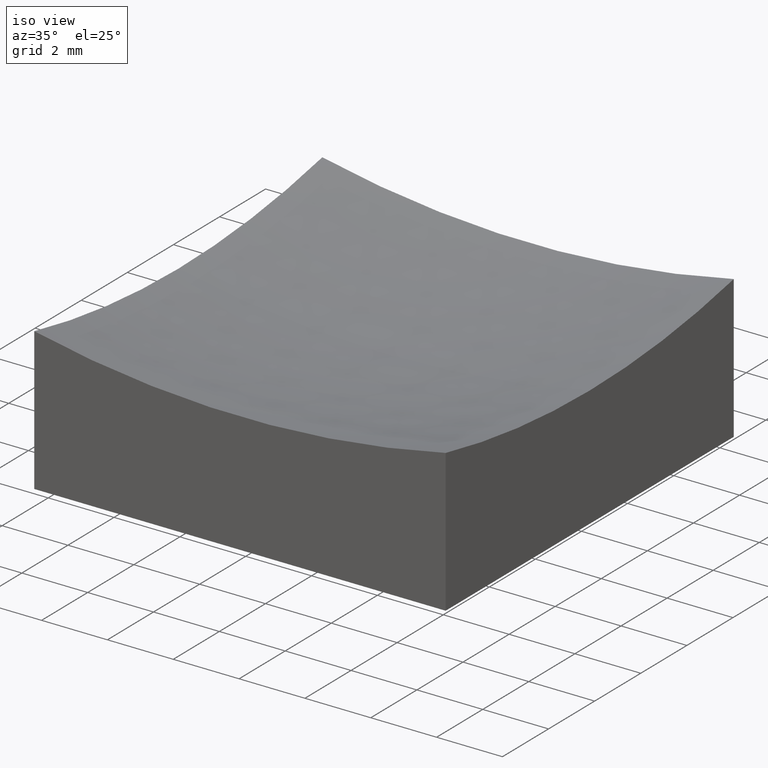
[diagram: clean part render]
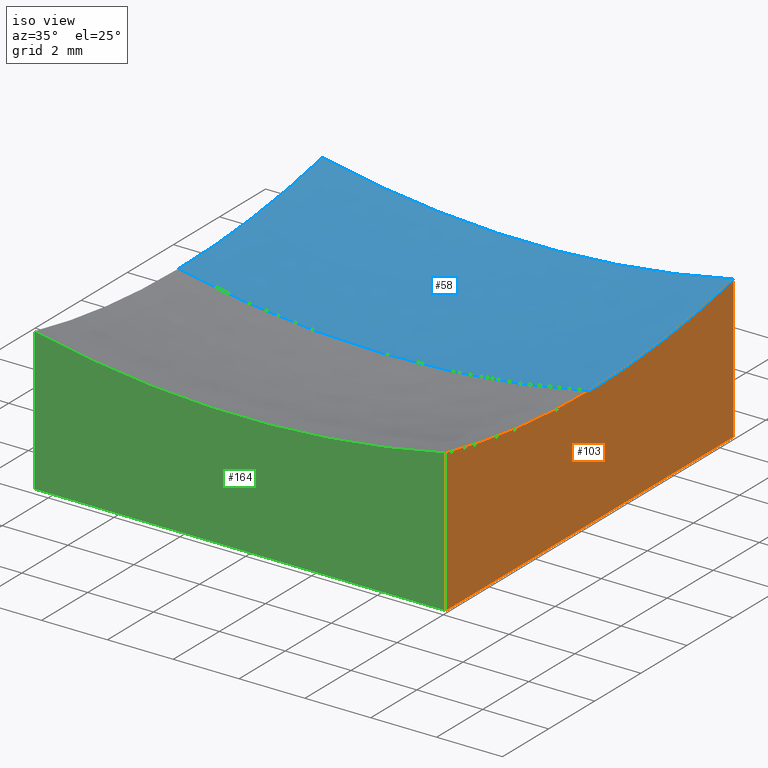
[diagram: same view with three faces highlighted in distinct colors, each labeled with its STEP entity id]
A machine part, iso view with three faces highlighted in distinct colors.
Their STEP definitions:

[orange] entity #103 — the highlighted planar face has unit normal (1, 0, -0).
#8 = EDGE_CURVE ( 'NONE', #167, #225, #51, .T. ) ;
#14 = ORIENTED_EDGE ( 'NONE', *, *, #78, .T. ) ;
#15 = DIRECTION ( 'NONE',  ( 1.000000000000000000, 0.0000000000000000000, -0.0000000000000000000 ) ) ;
#17 = CARTESIAN_POINT ( 'NONE',  ( 6.250000000000000000, 6.250000000000000888, 10.00000000000000000 ) ) ;
#21 = VECTOR ( 'NONE', #231, 1000.000000000000000 ) ;
#34 = AXIS2_PLACEMENT_3D ( 'NONE', #193, #15, #232 ) ;
#38 = LINE ( 'NONE', #75, #116 ) ;
#40 = CARTESIAN_POINT ( 'NONE',  ( 6.250000000000000000, 0.0000000000000000000, 33.00000000000000000 ) ) ;
#43 = AXIS2_PLACEMENT_3D ( 'NONE', #146, #211, #56 ) ;
#51 = LINE ( 'NONE', #17, #215 ) ;
#56 = DIRECTION ( 'NONE',  ( -0.0000000000000000000, 0.0000000000000000000, -1.000000000000000000 ) ) ;
#70 = CARTESIAN_POINT ( 'NONE',  ( 6.250000000000000000, 6.250000000000000888, 0.0000000000000000000 ) ) ;
#72 = DIRECTION ( 'NONE',  ( -0.0000000000000000000, -0.0000000000000000000, -1.000000000000000000 ) ) ;
#74 = EDGE_LOOP ( 'NONE', ( #80, #14, #221, #143, #248 ) ) ;
#75 = CARTESIAN_POINT ( 'NONE',  ( 6.250000000000000000, -6.250000000000000888, 10.00000000000000000 ) ) ;
#78 = EDGE_CURVE ( 'NONE', #121, #105, #38, .T. ) ;
#80 = ORIENTED_EDGE ( 'NONE', *, *, #133, .F. ) ;
#86 = CARTESIAN_POINT ( 'NONE',  ( 6.250000000000000000, 6.250000000000000888, 0.0000000000000000000 ) ) ;
#88 = DIRECTION ( 'NONE',  ( 1.000000000000000000, 0.0000000000000000000, -0.0000000000000000000 ) ) ;
#94 = AXIS2_PLACEMENT_3D ( 'NONE', #40, #88, #170 ) ;
#103 = ADVANCED_FACE ( 'NONE', ( #176 ), #196, .T. ) ;
#105 = VERTEX_POINT ( 'NONE', #131 ) ;
#116 = VECTOR ( 'NONE', #72, 1000.000000000000000 ) ;
#121 = VERTEX_POINT ( 'NONE', #216 ) ;
#122 = LINE ( 'NONE', #70, #21 ) ;
#128 = CARTESIAN_POINT ( 'NONE',  ( 6.250000000000000000, 6.250000000000000888, 4.331637647050714079 ) ) ;
#131 = CARTESIAN_POINT ( 'NONE',  ( 6.250000000000000000, -6.250000000000000888, 0.0000000000000000000 ) ) ;
#133 = EDGE_CURVE ( 'NONE', #121, #244, #138, .T. ) ;
#138 = CIRCLE ( 'NONE', #34, 29.34173648576375726 ) ;
#140 = EDGE_CURVE ( 'NONE', #244, #167, #207, .T. ) ;
#143 = ORIENTED_EDGE ( 'NONE', *, *, #8, .F. ) ;
#145 = DIRECTION ( 'NONE',  ( -0.0000000000000000000, -0.0000000000000000000, -1.000000000000000000 ) ) ;
#146 = CARTESIAN_POINT ( 'NONE',  ( 6.250000000000000000, 6.250000000000000888, 10.00000000000000000 ) ) ;
#167 = VERTEX_POINT ( 'NONE', #128 ) ;
#170 = DIRECTION ( 'NONE',  ( 0.0000000000000000000, 0.0000000000000000000, -1.000000000000000000 ) ) ;
#176 = FACE_OUTER_BOUND ( 'NONE', #74, .T. ) ;
#193 = CARTESIAN_POINT ( 'NONE',  ( 6.250000000000000000, 0.0000000000000000000, 33.00000000000000000 ) ) ;
#196 = PLANE ( 'NONE',  #43 ) ;
#207 = CIRCLE ( 'NONE', #94, 29.34173648576375726 ) ;
#211 = DIRECTION ( 'NONE',  ( 1.000000000000000000, 0.0000000000000000000, -0.0000000000000000000 ) ) ;
#212 = EDGE_CURVE ( 'NONE', #225, #105, #122, .T. ) ;
#215 = VECTOR ( 'NONE', #145, 1000.000000000000000 ) ;
#216 = CARTESIAN_POINT ( 'NONE',  ( 6.250000000000000000, -6.250000000000000888, 4.331637647050714079 ) ) ;
#221 = ORIENTED_EDGE ( 'NONE', *, *, #212, .F. ) ;
#225 = VERTEX_POINT ( 'NONE', #86 ) ;
#231 = DIRECTION ( 'NONE',  ( 0.0000000000000000000, -1.000000000000000000, 0.0000000000000000000 ) ) ;
#232 = DIRECTION ( 'NONE',  ( 0.0000000000000000000, 0.0000000000000000000, -1.000000000000000000 ) ) ;
#244 = VERTEX_POINT ( 'NONE', #251 ) ;
#248 = ORIENTED_EDGE ( 'NONE', *, *, #140, .F. ) ;
#251 = CARTESIAN_POINT ( 'NONE',  ( 6.250000000000000000, 0.0000000000000000000, 3.658263514236247627 ) ) ;

[blue] entity #58 — the highlighted spherical surface has radius 30 mm.
#2 = EDGE_CURVE ( 'NONE', #167, #229, #179, .T. ) ;
#3 = DIRECTION ( 'NONE',  ( 1.000000000000000000, 0.0000000000000000000, 0.0000000000000000000 ) ) ;
#9 = CARTESIAN_POINT ( 'NONE',  ( -6.250000000000000000, 0.0000000000000000000, 33.00000000000000000 ) ) ;
#10 = CIRCLE ( 'NONE', #32, 30.00000000000000000 ) ;
#11 = CARTESIAN_POINT ( 'NONE',  ( -6.250000000000000000, 6.250000000000000888, 4.331637647050714079 ) ) ;
#32 = AXIS2_PLACEMENT_3D ( 'NONE', #108, #198, #55 ) ;
#40 = CARTESIAN_POINT ( 'NONE',  ( 6.250000000000000000, 0.0000000000000000000, 33.00000000000000000 ) ) ;
#53 = DIRECTION ( 'NONE',  ( -0.0000000000000000000, 1.000000000000000000, 0.0000000000000000000 ) ) ;
#54 = AXIS2_PLACEMENT_3D ( 'NONE', #69, #110, #172 ) ;
#55 = DIRECTION ( 'NONE',  ( 0.0000000000000000000, 0.0000000000000000000, -1.000000000000000000 ) ) ;
#58 = ADVANCED_FACE ( 'NONE', ( #234 ), #217, .F. ) ;
#69 = CARTESIAN_POINT ( 'NONE',  ( 4.041334437186266200E-15, 0.0000000000000000000, 33.00000000000000000 ) ) ;
#73 = DIRECTION ( 'NONE',  ( 1.000000000000000000, 0.0000000000000000000, -0.0000000000000000000 ) ) ;
#82 = EDGE_CURVE ( 'NONE', #184, #244, #10, .T. ) ;
#87 = VERTEX_POINT ( 'NONE', #151 ) ;
#88 = DIRECTION ( 'NONE',  ( 1.000000000000000000, 0.0000000000000000000, -0.0000000000000000000 ) ) ;
#94 = AXIS2_PLACEMENT_3D ( 'NONE', #40, #88, #170 ) ;
#108 = CARTESIAN_POINT ( 'NONE',  ( 4.041334437186266200E-15, 0.0000000000000000000, 33.00000000000000000 ) ) ;
#110 = DIRECTION ( 'NONE',  ( 1.224646799147353207E-16, 1.000000000000000000, -2.794487877293521161E-33 ) ) ;
#111 = EDGE_CURVE ( 'NONE', #184, #87, #154, .T. ) ;
#118 = ORIENTED_EDGE ( 'NONE', *, *, #2, .T. ) ;
#124 = ORIENTED_EDGE ( 'NONE', *, *, #140, .T. ) ;
#128 = CARTESIAN_POINT ( 'NONE',  ( 6.250000000000000000, 6.250000000000000888, 4.331637647050714079 ) ) ;
#137 = CIRCLE ( 'NONE', #240, 29.34173648576375726 ) ;
#140 = EDGE_CURVE ( 'NONE', #244, #167, #207, .T. ) ;
#142 = ORIENTED_EDGE ( 'NONE', *, *, #82, .T. ) ;
#151 = CARTESIAN_POINT ( 'NONE',  ( -6.250000000000000000, 7.654042494670961551E-16, 3.658263514236247627 ) ) ;
#153 = CARTESIAN_POINT ( 'NONE',  ( 4.041334437186266200E-15, 0.0000000000000000000, 33.00000000000000000 ) ) ;
#154 = CIRCLE ( 'NONE', #54, 30.00000000000000000 ) ;
#167 = VERTEX_POINT ( 'NONE', #128 ) ;
#170 = DIRECTION ( 'NONE',  ( 0.0000000000000000000, 0.0000000000000000000, -1.000000000000000000 ) ) ;
#171 = DIRECTION ( 'NONE',  ( 0.0000000000000000000, 1.000000000000000000, 0.0000000000000000000 ) ) ;
#172 = DIRECTION ( 'NONE',  ( -1.000000000000000000, 1.224646799147352961E-16, 0.0000000000000000000 ) ) ;
#179 = CIRCLE ( 'NONE', #180, 29.34173648576375726 ) ;
#180 = AXIS2_PLACEMENT_3D ( 'NONE', #210, #171, #190 ) ;
#184 = VERTEX_POINT ( 'NONE', #185 ) ;
#185 = CARTESIAN_POINT ( 'NONE',  ( 5.193742880002045651E-15, 0.0000000000000000000, 3.000000000000002665 ) ) ;
#186 = ORIENTED_EDGE ( 'NONE', *, *, #111, .F. ) ;
#188 = ORIENTED_EDGE ( 'NONE', *, *, #223, .F. ) ;
#190 = DIRECTION ( 'NONE',  ( 0.0000000000000000000, 0.0000000000000000000, 1.000000000000000000 ) ) ;
#194 = DIRECTION ( 'NONE',  ( 0.0000000000000000000, 0.0000000000000000000, -1.000000000000000000 ) ) ;
#198 = DIRECTION ( 'NONE',  ( 0.0000000000000000000, -1.000000000000000000, -0.0000000000000000000 ) ) ;
#207 = CIRCLE ( 'NONE', #94, 29.34173648576375726 ) ;
#210 = CARTESIAN_POINT ( 'NONE',  ( 4.041334437186266200E-15, 6.250000000000000888, 33.00000000000000000 ) ) ;
#217 = SPHERICAL_SURFACE ( 'NONE', #233, 30.00000000000000000 ) ;
#223 = EDGE_CURVE ( 'NONE', #87, #229, #137, .T. ) ;
#229 = VERTEX_POINT ( 'NONE', #11 ) ;
#233 = AXIS2_PLACEMENT_3D ( 'NONE', #153, #53, #3 ) ;
#234 = FACE_OUTER_BOUND ( 'NONE', #242, .T. ) ;
#240 = AXIS2_PLACEMENT_3D ( 'NONE', #9, #73, #194 ) ;
#242 = EDGE_LOOP ( 'NONE', ( #186, #142, #124, #118, #188 ) ) ;
#244 = VERTEX_POINT ( 'NONE', #251 ) ;
#251 = CARTESIAN_POINT ( 'NONE',  ( 6.250000000000000000, 0.0000000000000000000, 3.658263514236247627 ) ) ;

[green] entity #164 — the highlighted planar face has unit normal (0, 1, 0).
#6 = VERTEX_POINT ( 'NONE', #169 ) ;
#13 = LINE ( 'NONE', #120, #200 ) ;
#20 = AXIS2_PLACEMENT_3D ( 'NONE', #250, #109, #92 ) ;
#33 = CARTESIAN_POINT ( 'NONE',  ( -6.250000000000000000, -6.250000000000000888, 0.0000000000000000000 ) ) ;
#36 = FACE_OUTER_BOUND ( 'NONE', #208, .T. ) ;
#38 = LINE ( 'NONE', #75, #116 ) ;
#48 = DIRECTION ( 'NONE',  ( 1.000000000000000000, 0.0000000000000000000, 0.0000000000000000000 ) ) ;
#59 = VECTOR ( 'NONE', #246, 1000.000000000000000 ) ;
#66 = ORIENTED_EDGE ( 'NONE', *, *, #83, .T. ) ;
#72 = DIRECTION ( 'NONE',  ( -0.0000000000000000000, -0.0000000000000000000, -1.000000000000000000 ) ) ;
#75 = CARTESIAN_POINT ( 'NONE',  ( 6.250000000000000000, -6.250000000000000888, 10.00000000000000000 ) ) ;
#78 = EDGE_CURVE ( 'NONE', #121, #105, #38, .T. ) ;
#83 = EDGE_CURVE ( 'NONE', #6, #162, #127, .T. ) ;
#92 = DIRECTION ( 'NONE',  ( 0.0000000000000000000, 0.0000000000000000000, 1.000000000000000000 ) ) ;
#100 = DIRECTION ( 'NONE',  ( 0.0000000000000000000, -0.0000000000000000000, 1.000000000000000000 ) ) ;
#105 = VERTEX_POINT ( 'NONE', #131 ) ;
#107 = ORIENTED_EDGE ( 'NONE', *, *, #78, .F. ) ;
#109 = DIRECTION ( 'NONE',  ( 0.0000000000000000000, 1.000000000000000000, 0.0000000000000000000 ) ) ;
#116 = VECTOR ( 'NONE', #72, 1000.000000000000000 ) ;
#120 = CARTESIAN_POINT ( 'NONE',  ( -6.250000000000000000, -6.250000000000000888, 0.0000000000000000000 ) ) ;
#121 = VERTEX_POINT ( 'NONE', #216 ) ;
#127 = LINE ( 'NONE', #149, #59 ) ;
#129 = ORIENTED_EDGE ( 'NONE', *, *, #152, .T. ) ;
#131 = CARTESIAN_POINT ( 'NONE',  ( 6.250000000000000000, -6.250000000000000888, 0.0000000000000000000 ) ) ;
#149 = CARTESIAN_POINT ( 'NONE',  ( -6.250000000000000000, -6.250000000000000888, 10.00000000000000000 ) ) ;
#152 = EDGE_CURVE ( 'NONE', #121, #6, #239, .T. ) ;
#162 = VERTEX_POINT ( 'NONE', #33 ) ;
#164 = ADVANCED_FACE ( 'NONE', ( #36 ), #222, .F. ) ;
#169 = CARTESIAN_POINT ( 'NONE',  ( -6.250000000000000000, -6.250000000000000888, 4.331637647050714079 ) ) ;
#174 = EDGE_CURVE ( 'NONE', #162, #105, #13, .T. ) ;
#181 = AXIS2_PLACEMENT_3D ( 'NONE', #191, #206, #100 ) ;
#182 = ORIENTED_EDGE ( 'NONE', *, *, #174, .T. ) ;
#191 = CARTESIAN_POINT ( 'NONE',  ( -6.250000000000000000, -6.250000000000000888, 10.00000000000000000 ) ) ;
#200 = VECTOR ( 'NONE', #48, 1000.000000000000000 ) ;
#206 = DIRECTION ( 'NONE',  ( 0.0000000000000000000, 1.000000000000000000, 0.0000000000000000000 ) ) ;
#208 = EDGE_LOOP ( 'NONE', ( #107, #129, #66, #182 ) ) ;
#216 = CARTESIAN_POINT ( 'NONE',  ( 6.250000000000000000, -6.250000000000000888, 4.331637647050714079 ) ) ;
#222 = PLANE ( 'NONE',  #181 ) ;
#239 = CIRCLE ( 'NONE', #20, 29.34173648576375726 ) ;
#246 = DIRECTION ( 'NONE',  ( -0.0000000000000000000, -0.0000000000000000000, -1.000000000000000000 ) ) ;
#250 = CARTESIAN_POINT ( 'NONE',  ( 4.041334437186266200E-15, -6.250000000000000888, 33.00000000000000000 ) ) ;